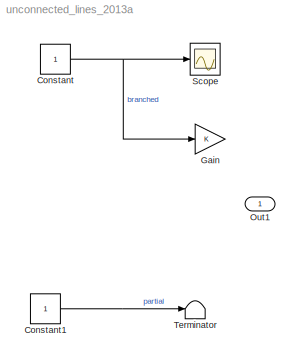
MODEL unconnected_lines_2013a
KIND model
BLOCK [Constant] Constant
  SID = 1
BLOCK [Constant] Constant1
  SID = 6
BLOCK [Gain] Gain
  OutDataTypeStr = Inherit: Inherit via internal rule
  ParamDataTypeStr = Inherit: Inherit via internal rule
  SID = 3
  SaturateOnIntegerOverflow = off
BLOCK [Outport] Out1
  IconDisplay = Port number
  SID = 4
BLOCK [Scope] Scope
  DataFormat = StructureWithTime
  Floating = off
  NumInputPorts = 1
  Ports = [1]
  SID = 2
  SampleTime = 0
  ShowLegends = off
BLOCK [Terminator] Terminator
  SID = 7
LINE Constant1:1 -> Terminator:1
NET Constant:1 -> Gain:1, Scope:1
note: NET lines group one-source signal fan-out (src -> all destinations, sorted); 1:1 wires keep LINE
